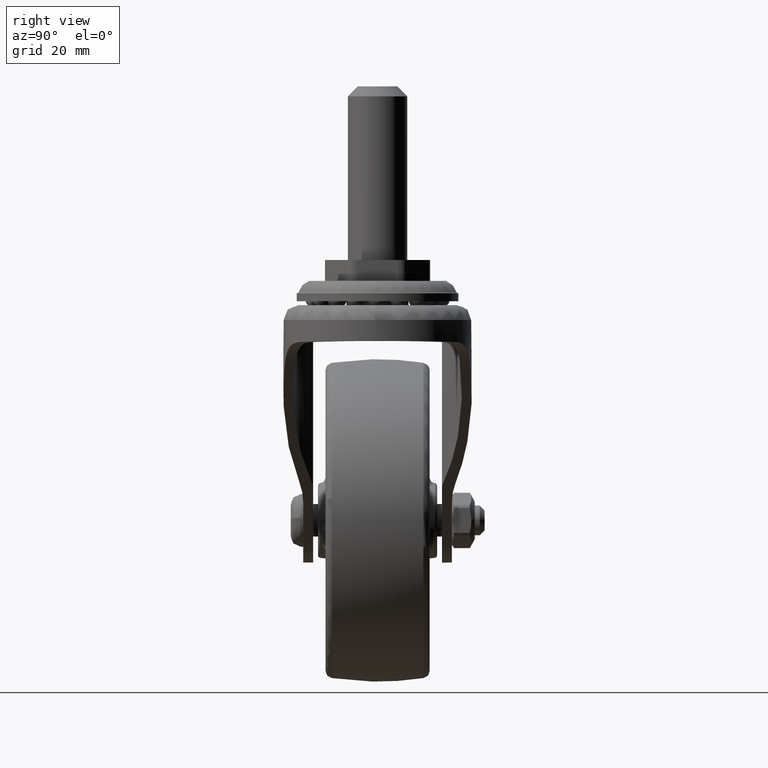
[diagram: clean part render]
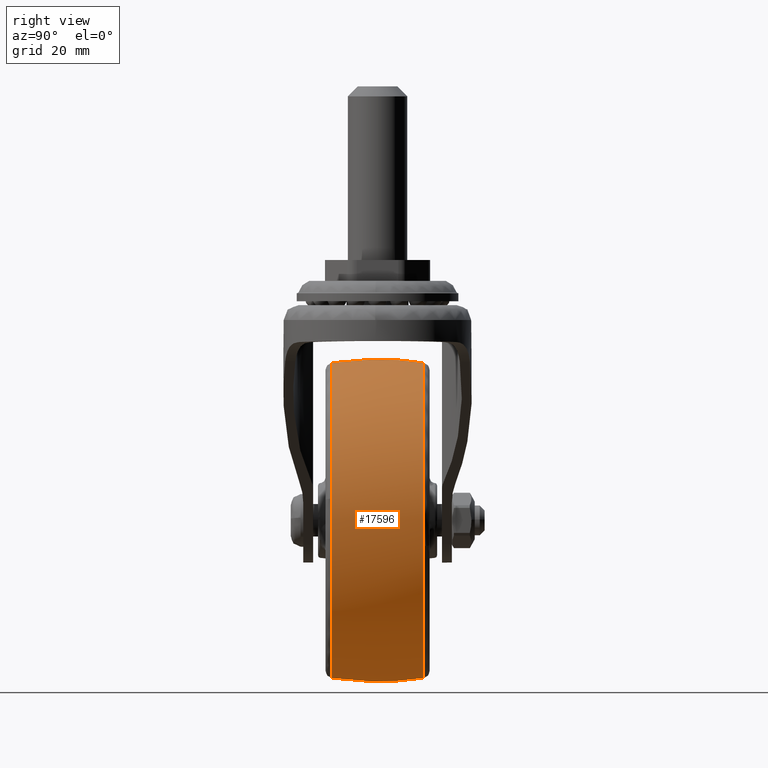
[diagram: same view with one face highlighted and labeled with its STEP entity id]
A machine part, right view. The second image highlights one B-rep face of the part: STEP entity #17596.
In plain terms, the highlighted face is a freeform B-spline surface patch.
Its self-contained STEP definition (entity closure, byte-faithful):
#17385=CARTESIAN_POINT('',(0.0,-9.230754666406810,-31.785691290276240));
#17386=VERTEX_POINT('',#17385);
#17400=CARTESIAN_POINT('',(31.482499825512100,-9.230758936445062,4.379759463528613));
#17401=VERTEX_POINT('',#17400);
#17402=CARTESIAN_POINT('',(0.0,-9.230754666406810,-31.785691290276240));
#17403=CARTESIAN_POINT('',(31.785689571017297,-9.230754721984495,-31.785691241562695));
#17404=CARTESIAN_POINT('',(31.785689973264830,-9.230758426525393,-0.000000412680717));
#17405=CARTESIAN_POINT('',(31.785690001110538,-9.230758682973368,2.200373743280914));
#17406=CARTESIAN_POINT('',(31.482499825512107,-9.230758936445060,4.379759463528614));
#17414=(BOUNDED_CURVE()B_SPLINE_CURVE(2,(#17402,#17403,#17404,#17405,#17406),.UNSPECIFIED.,.F.,.U.)B_SPLINE_CURVE_WITH_KNOTS((3,2,3),(0.0,0.250000000000000,0.273792610694561),.UNSPECIFIED.)CURVE()GEOMETRIC_REPRESENTATION_ITEM()RATIONAL_B_SPLINE_CURVE((1.0,0.707106781186547,1.0,0.972125222678778,0.949556155157568))REPRESENTATION_ITEM(''));
#17415=EDGE_CURVE('',#17386,#17401,#17414,.T.);
#17471=CARTESIAN_POINT('',(0.0,-9.230761947799120,31.785690255568571));
#17472=VERTEX_POINT('',#17471);
#17492=CARTESIAN_POINT('',(31.482499825512107,-9.230758936445060,4.379759463528614));
#17493=CARTESIAN_POINT('',(27.669861025577013,-9.230762011643858,31.785690311528132));
#17494=CARTESIAN_POINT('',(0.0,-9.230761947799120,31.785690255568571));
#17502=(BOUNDED_CURVE()B_SPLINE_CURVE(2,(#17492,#17493,#17494),.UNSPECIFIED.,.F.,.U.)B_SPLINE_CURVE_WITH_KNOTS((3,3),(0.273792610694561,0.500000000000000),.UNSPECIFIED.)CURVE()GEOMETRIC_REPRESENTATION_ITEM()RATIONAL_B_SPLINE_CURVE((0.949556155157568,0.734981558507769,1.0))REPRESENTATION_ITEM(''));
#17503=EDGE_CURVE('',#17401,#17472,#17502,.T.);
#17508=CARTESIAN_POINT('',(0.0,-10.161985291024546,-31.633189115292950));
#17509=CARTESIAN_POINT('',(0.0,-5.117961854201754,-32.499999999999993));
#17510=CARTESIAN_POINT('',(0.0,0.0,-32.500000000000000));
#17511=CARTESIAN_POINT('',(0.0,5.117952097448593,-32.500000000000000));
#17512=CARTESIAN_POINT('',(0.0,10.161966198344082,-31.633192396349727));
#17513=CARTESIAN_POINT('',(31.633189115292950,-10.161985291024546,-31.633189115292950));
#17514=CARTESIAN_POINT('',(32.500000000000000,-5.117961854201754,-32.500000000000000));
#17515=CARTESIAN_POINT('',(32.500000000000007,0.0,-32.500000000000007));
#17516=CARTESIAN_POINT('',(32.500000000000000,5.117952097448594,-32.500000000000000));
#17517=CARTESIAN_POINT('',(31.633192396349717,10.161966198344080,-31.633192396349717));
#17518=CARTESIAN_POINT('',(31.633189115292950,-10.161985291024546,0.0));
#17519=CARTESIAN_POINT('',(32.499999999999993,-5.117961854201754,0.0));
#17520=CARTESIAN_POINT('',(32.500000000000000,0.0,0.0));
#17521=CARTESIAN_POINT('',(32.500000000000000,5.117952097448593,0.0));
#17522=CARTESIAN_POINT('',(31.633192396349727,10.161966198344082,0.0));
#17523=CARTESIAN_POINT('',(31.633189115292950,-10.161985291024546,31.633189115292950));
#17524=CARTESIAN_POINT('',(32.500000000000000,-5.117961854201754,32.500000000000000));
#17525=CARTESIAN_POINT('',(32.500000000000007,0.0,32.500000000000007));
#17526=CARTESIAN_POINT('',(32.500000000000000,5.117952097448594,32.500000000000000));
#17527=CARTESIAN_POINT('',(31.633192396349717,10.161966198344080,31.633192396349717));
#17528=CARTESIAN_POINT('',(0.0,-10.161985291024546,31.633189115292950));
#17529=CARTESIAN_POINT('',(0.0,-5.117961854201754,32.499999999999993));
#17530=CARTESIAN_POINT('',(0.0,0.0,32.500000000000000));
#17531=CARTESIAN_POINT('',(0.0,5.117952097448593,32.500000000000000));
#17532=CARTESIAN_POINT('',(0.0,10.161966198344082,31.633192396349727));
#17540=(BOUNDED_SURFACE()B_SPLINE_SURFACE(2,2,((#17508,#17513,#17518,#17523,#17528),(#17509,#17514,#17519,#17524,#17529),(#17510,#17515,#17520,#17525,#17530),(#17511,#17516,#17521,#17526,#17531),(#17512,#17517,#17522,#17527,#17532)),.UNSPECIFIED.,.F.,.F.,.U.)B_SPLINE_SURFACE_WITH_KNOTS((3,2,3),(3,2,3),(0.0,10.405309973896070,20.810600575239292),(0.0,53.847763108502363,107.695526217004700),.UNSPECIFIED.)GEOMETRIC_REPRESENTATION_ITEM()RATIONAL_B_SPLINE_SURFACE(((0.960717181093286,0.679329633553487,0.960717181093286,0.679329633553487,0.960717181093286),(0.976615335489096,0.690571326335115,0.976615335489096,0.690571326335115,0.976615335489096),(1.0,0.707106781186548,1.0,0.707106781186548,1.0),(0.976615379026545,0.690571357120740,0.976615379026545,0.690571357120740,0.976615379026545),(0.960717240291517,0.679329675412958,0.960717240291517,0.679329675412958,0.960717240291517)))REPRESENTATION_ITEM('')SURFACE());
#17541=CARTESIAN_POINT('',(0.0,9.230744439633639,-31.785692882575699));
#17542=VERTEX_POINT('',#17541);
#17543=CARTESIAN_POINT('',(0.0,-9.230754666406810,-31.785691290276240));
#17544=CARTESIAN_POINT('',(0.0,-6.082996871574808,-32.276015349660447));
#17545=CARTESIAN_POINT('',(0.0,0.097678077028129,-32.738896286232929));
#17546=CARTESIAN_POINT('',(0.0,6.273724931574289,-32.246245238982993));
#17547=CARTESIAN_POINT('',(0.0,9.230744439633639,-31.785692882575699));
#17548=B_SPLINE_CURVE_WITH_KNOTS('',3,(#17543,#17544,#17545,#17546,#17547),.UNSPECIFIED.,.F.,.U.,(4,1,4),(-8.582635E-009,9.557135829515318,18.535129980650311),.UNSPECIFIED.);
#17549=EDGE_CURVE('',#17386,#17542,#17548,.T.);
#17550=ORIENTED_EDGE('',*,*,#17549,.T.);
#17551=CARTESIAN_POINT('',(31.362494506547399,9.230744741047921,-5.169534673073018));
#17552=VERTEX_POINT('',#17551);
#17553=CARTESIAN_POINT('',(0.0,9.230744439633639,-31.785692882575699));
#17554=CARTESIAN_POINT('',(26.975306848796826,9.230744596666092,-31.785693046436315));
#17555=CARTESIAN_POINT('',(31.362494506547403,9.230744741047921,-5.169534673073018));
#17563=(BOUNDED_CURVE()B_SPLINE_CURVE(2,(#17553,#17554,#17555),.UNSPECIFIED.,.F.,.U.)B_SPLINE_CURVE_WITH_KNOTS((3,3),(0.0,0.222006112620127),.UNSPECIFIED.)CURVE()GEOMETRIC_REPRESENTATION_ITEM()RATIONAL_B_SPLINE_CURVE((1.0,0.739903660313716,0.941751138871241))REPRESENTATION_ITEM(''));
#17564=EDGE_CURVE('',#17542,#17552,#17563,.T.);
#17565=ORIENTED_EDGE('',*,*,#17564,.T.);
#17566=CARTESIAN_POINT('',(0.0,9.230744409418177,31.785692689276789));
#17567=VERTEX_POINT('',#17566);
#17568=CARTESIAN_POINT('',(31.362494506547403,9.230744741047921,-5.169534673073018));
#17569=CARTESIAN_POINT('',(31.785690753373743,9.230744728917868,-2.602089713543504));
#17570=CARTESIAN_POINT('',(31.785690671992480,9.230744714825860,-0.000000399572365));
#17571=CARTESIAN_POINT('',(31.785689677883688,9.230744542685644,31.785692550214520));
#17572=CARTESIAN_POINT('',(0.0,9.230744409418177,31.785692689276789));
#17580=(BOUNDED_CURVE()B_SPLINE_CURVE(2,(#17568,#17569,#17570,#17571,#17572),.UNSPECIFIED.,.F.,.U.)B_SPLINE_CURVE_WITH_KNOTS((3,2,3),(0.222006112620127,0.250000000000000,0.500000000000000),.UNSPECIFIED.)CURVE()GEOMETRIC_REPRESENTATION_ITEM()RATIONAL_B_SPLINE_CURVE((0.941751138871241,0.967203120872831,1.0,0.707106781186547,1.0))REPRESENTATION_ITEM(''));
#17581=EDGE_CURVE('',#17552,#17567,#17580,.T.);
#17582=ORIENTED_EDGE('',*,*,#17581,.T.);
#17583=CARTESIAN_POINT('',(0.0,-9.230761947799120,31.785690255568571));
#17584=CARTESIAN_POINT('',(0.0,-7.227618721164678,32.097612783277569));
#17585=CARTESIAN_POINT('',(0.0,-3.189703745625749,32.518123870868081));
#17586=CARTESIAN_POINT('',(0.0,2.996588833070978,32.533062781164212));
#17587=CARTESIAN_POINT('',(0.0,7.132202642651431,32.112476231463432));
#17588=CARTESIAN_POINT('',(0.0,9.230744409418177,31.785692689276789));
#17589=B_SPLINE_CURVE_WITH_KNOTS('',3,(#17583,#17584,#17585,#17586,#17587,#17588),.UNSPECIFIED.,.F.,.U.,(4,1,1,4),(-8.583140E-009,6.081854122032862,12.163636574470830,18.535137319455981),.UNSPECIFIED.);
#17590=EDGE_CURVE('',#17472,#17567,#17589,.T.);
#17591=ORIENTED_EDGE('',*,*,#17590,.F.);
#17592=ORIENTED_EDGE('',*,*,#17503,.F.);
#17593=ORIENTED_EDGE('',*,*,#17415,.F.);
#17594=EDGE_LOOP('',(#17550,#17565,#17582,#17591,#17592,#17593));
#17595=FACE_OUTER_BOUND('',#17594,.T.);
#17596=ADVANCED_FACE('',(#17595),#17540,.T.);